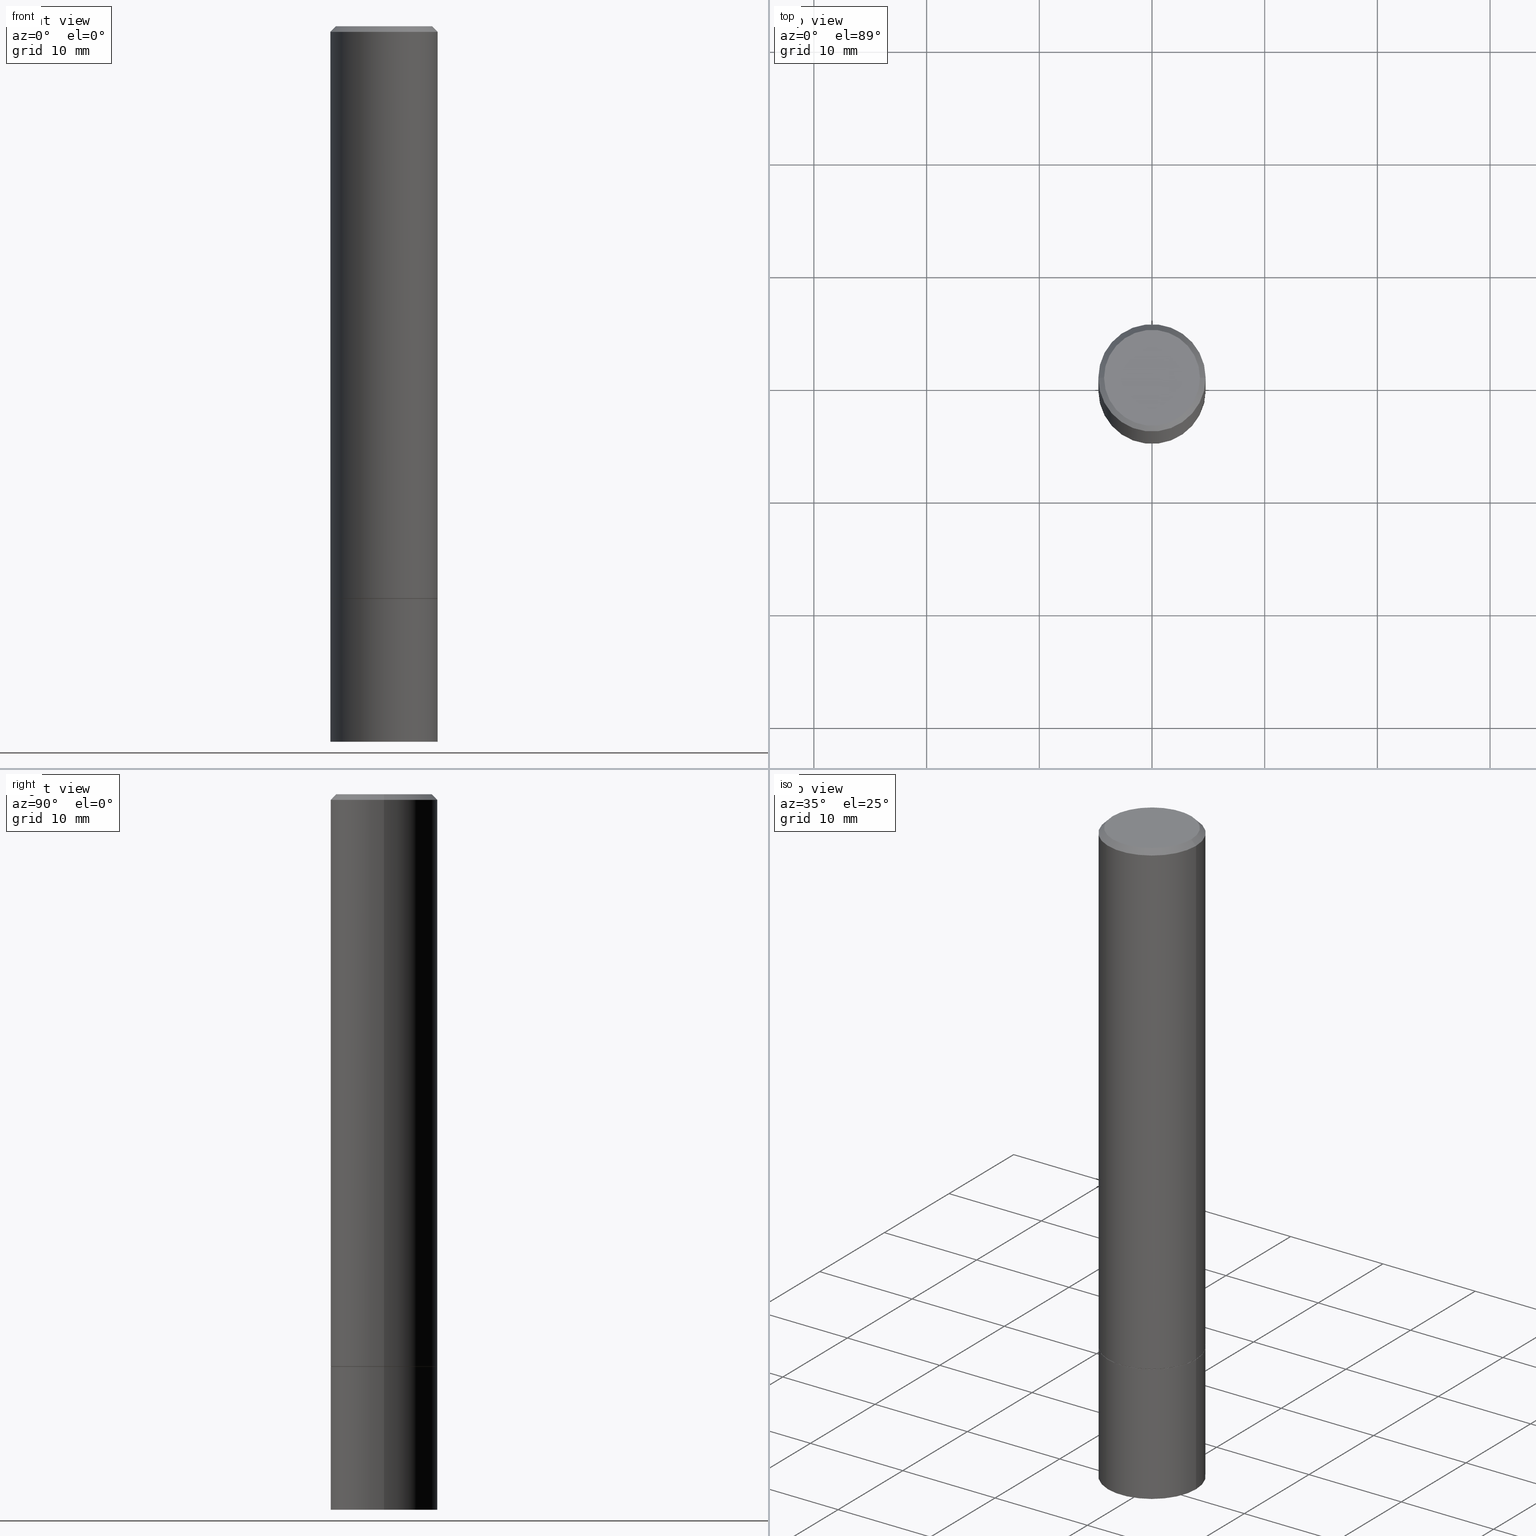
[diagram: canonical four-view strip — front | top / right | iso, engineering-drawing reading convention]
A machine part, canonical four-view strip (front | top / right | iso — engineering-drawing reading convention). The complete STEP part file that produces these views, byte-faithful:
ISO-10303-21;
HEADER;
FILE_DESCRIPTION (( 'STEP AP203' ),
    '1' );
FILE_NAME ('32661.STEP',
    '2022-04-27T15:46:38',
    ( '' ),
    ( '' ),
    'SwSTEP 2.0',
    'SolidWorks 2022',
    '' );
FILE_SCHEMA (( 'CONFIG_CONTROL_DESIGN' ));
ENDSEC;

DATA;
#1 = CARTESIAN_POINT ( 'NONE',  ( -0.1674999999999997879, 1.204561061900879272E-15, -8.301862719484101980E-30 ) ) ;
#2 = VECTOR ( 'NONE', #211, 39.37007874015748854 ) ;
#3 = CARTESIAN_POINT ( 'NONE',  ( 0.000000000000000000, 0.000000000000000000, 0.000000000000000000 ) ) ;
#4 = ADVANCED_FACE ( 'NONE', ( #110 ), #223, .T. ) ;
#5 = DIRECTION ( 'NONE',  ( 1.000000000000000000, -6.982962677686266711E-15, 0.000000000000000000 ) ) ;
#6 = DIRECTION ( 'NONE',  ( 0.9998476951563912696, -6.920387862090559512E-15, -0.01745240643727649296 ) ) ;
#7 = CARTESIAN_POINT ( 'NONE',  ( 0.000000000000000000, 0.000000000000000000, 0.000000000000000000 ) ) ;
#8 = VECTOR ( 'NONE', #149, 39.37007874015748143 ) ;
#9 = ADVANCED_FACE ( 'NONE', ( #309 ), #48, .T. ) ;
#10 = CC_DESIGN_APPROVAL ( #209, ( #274 ) ) ;
#11 = DIRECTION ( 'NONE',  ( -2.438088387897960049E-29, 3.491481338843145188E-15, 1.000000000000000000 ) ) ;
#12 = FACE_OUTER_BOUND ( 'NONE', #196, .T. ) ;
#13 = ORIENTED_EDGE ( 'NONE', *, *, #160, .T. ) ;
#14 = PERSON_AND_ORGANIZATION ( #333, #151 ) ;
#15 = DIMENSIONAL_EXPONENTS ( 1.000000000000000000, 0.000000000000000000, 0.000000000000000000, 0.000000000000000000, 0.000000000000000000, 0.000000000000000000, 0.000000000000000000 ) ;
#16 = EDGE_LOOP ( 'NONE', ( #107, #13, #85, #78 ) ) ;
#17 = ORIENTED_EDGE ( 'NONE', *, *, #172, .F. ) ;
#18 = DIRECTION ( 'NONE',  ( 1.000000000000000000, 0.000000000000000000, 0.000000000000000000 ) ) ;
#19 = ADVANCED_FACE ( 'NONE', ( #234 ), #358, .T. ) ;
#20 = APPLICATION_CONTEXT ( 'configuration controlled 3d designs of mechanical parts and assemblies' ) ;
#21 = VERTEX_POINT ( 'NONE', #1 ) ;
#22 = CC_DESIGN_PERSON_AND_ORGANIZATION_ASSIGNMENT ( #346, #177, ( #213 ) ) ;
#23 = DATE_AND_TIME ( #80, #240 ) ;
#24 = CARTESIAN_POINT ( 'NONE',  ( 1.023839678809221063E-27, -1.461771715708782654E-13, -41.86680591548343955 ) ) ;
#25 = CALENDAR_DATE ( 2022, 27, 4 ) ;
#26 = DIRECTION ( 'NONE',  ( -0.7071067811865466846, 2.468850131082247989E-15, -0.7071067811865483499 ) ) ;
#27 = DIRECTION ( 'NONE',  ( 1.000000000000000000, -6.982962677686265922E-15, 4.876176775795935793E-29 ) ) ;
#28 = EDGE_CURVE ( 'NONE', #377, #21, #312, .T. ) ;
#29 = DIRECTION ( 'NONE',  ( 0.7071067811865466846, -7.319954787623252890E-15, -0.7071067811865483499 ) ) ;
#30 = AXIS2_PLACEMENT_3D ( 'NONE', #345, #281, #18 ) ;
#31 = APPROVAL_PERSON_ORGANIZATION ( #56, #359, #50 ) ;
#32 = CARTESIAN_POINT ( 'NONE',  ( -0.1864999999999999714, -5.657800475493705114E-15, -2.000000000000000000 ) ) ;
#33 = EDGE_CURVE ( 'NONE', #284, #316, #247, .T. ) ;
#34 = ADVANCED_BREP_SHAPE_REPRESENTATION ( '32661', ( #108, #365, #30 ), #313 ) ;
#35 = CYLINDRICAL_SURFACE ( 'NONE', #351, 0.1874999999999999167 ) ;
#36 = AXIS2_PLACEMENT_3D ( 'NONE', #301, #273, #5 ) ;
#37 = FACE_OUTER_BOUND ( 'NONE', #165, .T. ) ;
#38 = CC_DESIGN_PERSON_AND_ORGANIZATION_ASSIGNMENT ( #14, #253, ( #132 ) ) ;
#39 = DIRECTION ( 'NONE',  ( -2.445468806185136597E-29, 3.491481338843145583E-15, 1.000000000000000000 ) ) ;
#40 = EDGE_CURVE ( 'NONE', #21, #102, #95, .T. ) ;
#41 = DIRECTION ( 'NONE',  ( -2.445468806185136597E-29, 3.491481338843145583E-15, 1.000000000000000000 ) ) ;
#42 = CARTESIAN_POINT ( 'NONE',  ( 0.1875000000000000555, -8.288776698413622377E-15, -1.998999999999999888 ) ) ;
#43 = CONICAL_SURFACE ( 'NONE', #176, 0.1874999999999997780, 0.7853981633974471688 ) ;
#44 = CC_DESIGN_APPROVAL ( #94, ( #213 ) ) ;
#45 = ORIENTED_EDGE ( 'NONE', *, *, #348, .F. ) ;
#46 = APPROVAL_STATUS ( 'not_yet_approved' ) ;
#47 = APPLICATION_CONTEXT ( 'configuration controlled 3d designs of mechanical parts and assemblies' ) ;
#48 = CYLINDRICAL_SURFACE ( 'NONE', #103, 0.1874999999999999167 ) ;
#49 = PERSON_AND_ORGANIZATION ( #333, #151 ) ;
#50 = APPROVAL_ROLE ( '' ) ;
#51 = ORIENTED_EDGE ( 'NONE', *, *, #188, .F. ) ;
#52 = CIRCLE ( 'NONE', #267, 0.1875000000000000278 ) ;
#53 = LOCAL_TIME ( 11, 46, 38.00000000000000000, #197 ) ;
#54 = DATE_AND_TIME ( #25, #120 ) ;
#55 = EDGE_LOOP ( 'NONE', ( #201, #339, #17, #228 ) ) ;
#56 = PERSON_AND_ORGANIZATION ( #333, #151 ) ;
#57 = ORIENTED_EDGE ( 'NONE', *, *, #361, .T. ) ;
#58 = CYLINDRICAL_SURFACE ( 'NONE', #388, 0.1875000000000000278 ) ;
#59 = CARTESIAN_POINT ( 'NONE',  ( -0.1874999999999997780, 1.239475875289310330E-15, -0.02000000000000004205 ) ) ;
#60 = PERSON_AND_ORGANIZATION ( #333, #151 ) ;
#61 = ADVANCED_FACE ( 'NONE', ( #269 ), #43, .T. ) ;
#62 = PLANE ( 'NONE',  #106 ) ;
#63 = CARTESIAN_POINT ( 'NONE',  ( 0.1864999999999999714, -8.285285217074779370E-15, -2.000000000000000000 ) ) ;
#64 = DIRECTION ( 'NONE',  ( -2.445468806185136597E-29, 3.491481338843145583E-15, 1.000000000000000000 ) ) ;
#65 = VECTOR ( 'NONE', #6, 39.37007874015748143 ) ;
#66 = APPROVAL_PERSON_ORGANIZATION ( #204, #94, #378 ) ;
#67 = DIRECTION ( 'NONE',  ( -1.000000000000000000, 6.982962677686265922E-15, -4.876176775795935793E-29 ) ) ;
#68 = ORIENTED_EDGE ( 'NONE', *, *, #259, .F. ) ;
#69 = DIRECTION ( 'NONE',  ( 1.000000000000000000, -6.982962677686266711E-15, 0.000000000000000000 ) ) ;
#70 = CARTESIAN_POINT ( 'NONE',  ( 1.169646248512448215E-15, 0.1674999999999997879, -5.848231242562260795E-16 ) ) ;
#71 = AXIS2_PLACEMENT_3D ( 'NONE', #335, #187, #298 ) ;
#72 = CARTESIAN_POINT ( 'NONE',  ( 0.1875000000000000278, -1.309305502066175008E-15, 9.142831454617381013E-30 ) ) ;
#73 = ORIENTED_EDGE ( 'NONE', *, *, #315, .T. ) ;
#74 = EDGE_CURVE ( 'NONE', #98, #199, #127, .T. ) ;
#75 = DIRECTION ( 'NONE',  ( -2.445468806185136597E-29, 3.491481338843145583E-15, 1.000000000000000000 ) ) ;
#76 = AXIS2_PLACEMENT_3D ( 'NONE', #144, #232, #88 ) ;
#77 = ORIENTED_EDGE ( 'NONE', *, *, #328, .T. ) ;
#78 = ORIENTED_EDGE ( 'NONE', *, *, #40, .F. ) ;
#79 = DIRECTION ( 'NONE',  ( -2.445468806185136597E-29, 3.491481338843145583E-15, 1.000000000000000000 ) ) ;
#80 = CALENDAR_DATE ( 2022, 27, 4 ) ;
#81 = ORIENTED_EDGE ( 'NONE', *, *, #84, .T. ) ;
#82 = VECTOR ( 'NONE', #389, 39.37007874015748143 ) ;
#83 = PERSON_AND_ORGANIZATION_ROLE ( 'creator' ) ;
#84 = EDGE_CURVE ( 'NONE', #288, #102, #91, .T. ) ;
#85 = ORIENTED_EDGE ( 'NONE', *, *, #188, .T. ) ;
#86 = DIRECTION ( 'NONE',  ( 2.438088387897960049E-29, -3.491481338843145188E-15, -1.000000000000000000 ) ) ;
#87 = PERSON_AND_ORGANIZATION ( #333, #151 ) ;
#88 = DIRECTION ( 'NONE',  ( -1.000000000000000000, 6.982962677686265133E-15, 0.000000000000000000 ) ) ;
#89 = CIRCLE ( 'NONE', #136, 0.1874999999999997780 ) ;
#90 = EDGE_CURVE ( 'NONE', #225, #288, #147, .T. ) ;
#91 = LINE ( 'NONE', #320, #162 ) ;
#92 = DIRECTION ( 'NONE',  ( -1.000000000000000000, 6.982962677686268288E-15, 0.000000000000000000 ) ) ;
#93 = ADVANCED_FACE ( 'NONE', ( #330 ), #62, .F. ) ;
#94 = APPROVAL ( #321, 'UNSPECIFIED' ) ;
#95 = LINE ( 'NONE', #203, #224 ) ;
#96 = ORIENTED_EDGE ( 'NONE', *, *, #362, .F. ) ;
#97 = AXIS2_PLACEMENT_3D ( 'NONE', #163, #214, #104 ) ;
#98 = VERTEX_POINT ( 'NONE', #63 ) ;
#99 = CARTESIAN_POINT ( 'NONE',  ( 0.1874999999999997780, -1.356173001359023691E-15, -0.02000000000000004205 ) ) ;
#100 = ADVANCED_FACE ( 'NONE', ( #185 ), #271, .F. ) ;
#101 = CARTESIAN_POINT ( 'NONE',  ( 0.1875000000000000278, -8.292268179752466962E-15, -2.000000000000000000 ) ) ;
#102 = VERTEX_POINT ( 'NONE', #59 ) ;
#103 = AXIS2_PLACEMENT_3D ( 'NONE', #166, #180, #294 ) ;
#104 = DIRECTION ( 'NONE',  ( 1.000000000000000000, -6.982962677686265922E-15, 0.000000000000000000 ) ) ;
#105 = CARTESIAN_POINT ( 'NONE',  ( 1.023839678809221063E-27, -1.461771715708782654E-13, -41.86680591548343955 ) ) ;
#106 = AXIS2_PLACEMENT_3D ( 'NONE', #360, #86, #67 ) ;
#107 = ORIENTED_EDGE ( 'NONE', *, *, #28, .F. ) ;
#108 = MANIFOLD_SOLID_BREP ( 'Body-Move/Copy2[1]', #386 ) ;
#109 = CALENDAR_DATE ( 2022, 27, 4 ) ;
#110 = FACE_OUTER_BOUND ( 'NONE', #55, .T. ) ;
#111 = CARTESIAN_POINT ( 'NONE',  ( 0.000000000000000000, 0.000000000000000000, 0.000000000000000000 ) ) ;
#112 = CC_DESIGN_DATE_AND_TIME_ASSIGNMENT ( #382, #167, ( #274 ) ) ;
#113 = DATE_AND_TIME ( #195, #248 ) ;
#114 = DESIGN_CONTEXT ( 'detailed design', #20, 'design' ) ;
#115 = EDGE_LOOP ( 'NONE', ( #367, #257 ) ) ;
#116 = CC_DESIGN_PERSON_AND_ORGANIZATION_ASSIGNMENT ( #49, #318, ( #352 ) ) ;
#117 = ORIENTED_EDGE ( 'NONE', *, *, #148, .F. ) ;
#118 = MECHANICAL_CONTEXT ( 'NONE', #47, 'mechanical' ) ;
#119 = CIRCLE ( 'NONE', #198, 0.1875000000000000555 ) ;
#120 = LOCAL_TIME ( 11, 46, 38.00000000000000000, #256 ) ;
#121 = APPROVAL_STATUS ( 'not_yet_approved' ) ;
#122 = DIRECTION ( 'NONE',  ( -2.445468806185136877E-29, 3.491481338843145188E-15, 1.000000000000000000 ) ) ;
#123 = CARTESIAN_POINT ( 'NONE',  ( 0.1875000000000009992, -1.001504672169003342E-14, -2.500000000000000000 ) ) ;
#124 = CARTESIAN_POINT ( 'NONE',  ( 0.1874999999999997780, -1.356173001359023691E-15, -0.02000000000000004205 ) ) ;
#125 = AXIS2_PLACEMENT_3D ( 'NONE', #219, #41, #186 ) ;
#126 = CARTESIAN_POINT ( 'NONE',  ( 0.000000000000000000, 0.000000000000000000, 0.000000000000000000 ) ) ;
#127 = LINE ( 'NONE', #296, #291 ) ;
#128 = EDGE_CURVE ( 'NONE', #317, #156, #175, .T. ) ;
#129 = DIRECTION ( 'NONE',  ( -2.445468806185136597E-29, 3.491481338843145583E-15, 1.000000000000000000 ) ) ;
#130 = CARTESIAN_POINT ( 'NONE',  ( 4.890937612370283668E-31, -6.982962677686305168E-17, -0.02000000000000004205 ) ) ;
#131 = VERTEX_POINT ( 'NONE', #123 ) ;
#132 = SECURITY_CLASSIFICATION ( '', '', #260 ) ;
#133 = UNCERTAINTY_MEASURE_WITH_UNIT (LENGTH_MEASURE( 1.000000000000000082E-05 ), #380, 'distance_accuracy_value', 'NONE');
#134 = EDGE_LOOP ( 'NONE', ( #57, #217, #295, #68 ) ) ;
#135 = DIRECTION ( 'NONE',  ( 1.000000000000000000, -6.982962677686265922E-15, 4.876176775795935793E-29 ) ) ;
#136 = AXIS2_PLACEMENT_3D ( 'NONE', #130, #242, #220 ) ;
#137 = ORIENTED_EDGE ( 'NONE', *, *, #285, .F. ) ;
#138 = CARTESIAN_POINT ( 'NONE',  ( 0.1674999999999997879, -1.252653207992876908E-15, 8.469775550109228175E-30 ) ) ;
#139 = ADVANCED_FACE ( 'NONE', ( #233 ), #261, .T. ) ;
#140 = EDGE_LOOP ( 'NONE', ( #374, #173, #192, #379 ) ) ;
#141 = APPROVAL_DATE_TIME ( #23, #209 ) ;
#142 = ORIENTED_EDGE ( 'NONE', *, *, #361, .F. ) ;
#143 = PERSON_AND_ORGANIZATION_ROLE ( 'creator' ) ;
#144 = CARTESIAN_POINT ( 'NONE',  ( 4.890937612370283668E-31, -6.982962677686305168E-17, -0.02000000000000004205 ) ) ;
#145 = PRODUCT_DEFINITION_SHAPE ( 'NONE', 'NONE',  #274 ) ;
#146 = SHAPE_DEFINITION_REPRESENTATION ( #145, #34 ) ;
#147 = LINE ( 'NONE', #32, #2 ) ;
#148 = EDGE_CURVE ( 'NONE', #98, #225, #276, .T. ) ;
#149 = DIRECTION ( 'NONE',  ( -0.9998476951563912696, 6.920964387254060733E-15, -0.01745240643727649296 ) ) ;
#150 = LINE ( 'NONE', #268, #82 ) ;
#151 = ORGANIZATION ( 'UNSPECIFIED', 'UNSPECIFIED', '' ) ;
#152 = DIRECTION ( 'NONE',  ( 1.000000000000000000, -6.982962677686266711E-15, 0.000000000000000000 ) ) ;
#153 = EDGE_CURVE ( 'NONE', #199, #299, #205, .T. ) ;
#154 = ORIENTED_EDGE ( 'NONE', *, *, #40, .T. ) ;
#155 = FACE_OUTER_BOUND ( 'NONE', #310, .T. ) ;
#156 = VERTEX_POINT ( 'NONE', #265 ) ;
#157 = VECTOR ( 'NONE', #272, 39.37007874015748143 ) ;
#158 = LINE ( 'NONE', #72, #157 ) ;
#159 = DIRECTION ( 'NONE',  ( 1.000000000000000000, -6.982962677686265922E-15, 0.000000000000000000 ) ) ;
#160 = EDGE_CURVE ( 'NONE', #377, #299, #385, .T. ) ;
#161 = CC_DESIGN_DATE_AND_TIME_ASSIGNMENT ( #113, #200, ( #132 ) ) ;
#162 = VECTOR ( 'NONE', #122, 39.37007874015748143 ) ;
#163 = CARTESIAN_POINT ( 'NONE',  ( 4.888492143564087591E-29, -6.979471196347447369E-15, -1.998999999999999888 ) ) ;
#164 = DIRECTION ( 'NONE',  ( 1.000000000000000000, -6.982962677686265922E-15, 4.876176775795935793E-29 ) ) ;
#165 = EDGE_LOOP ( 'NONE', ( #334, #364, #286, #349 ) ) ;
#166 = CARTESIAN_POINT ( 'NONE',  ( 0.000000000000000000, 0.000000000000000000, 0.000000000000000000 ) ) ;
#167 = DATE_TIME_ROLE ( 'creation_date' ) ;
#168 = EDGE_CURVE ( 'NONE', #156, #284, #150, .T. ) ;
#169 = CLOSED_SHELL ( 'NONE', ( #4, #9, #61, #139, #245, #238, #182, #221 ) ) ;
#170 = ORIENTED_EDGE ( 'NONE', *, *, #153, .F. ) ;
#171 = EDGE_LOOP ( 'NONE', ( #239, #255, #258, #280 ) ) ;
#172 = EDGE_CURVE ( 'NONE', #199, #288, #119, .T. ) ;
#173 = ORIENTED_EDGE ( 'NONE', *, *, #348, .T. ) ;
#174 = APPROVAL_ROLE ( '' ) ;
#175 = LINE ( 'NONE', #264, #8 ) ;
#176 = AXIS2_PLACEMENT_3D ( 'NONE', #183, #292, #325 ) ;
#177 = PERSON_AND_ORGANIZATION_ROLE ( 'design_supplier' ) ;
#178 = DIRECTION ( 'NONE',  ( 1.000000000000000000, -6.982962677686266711E-15, 4.876176775795935793E-29 ) ) ;
#179 = CC_DESIGN_PERSON_AND_ORGANIZATION_ASSIGNMENT ( #87, #143, ( #274 ) ) ;
#180 = DIRECTION ( 'NONE',  ( -2.445468806185136597E-29, 3.491481338843145583E-15, 1.000000000000000000 ) ) ;
#181 = ORIENTED_EDGE ( 'NONE', *, *, #160, .F. ) ;
#182 = ADVANCED_FACE ( 'NONE', ( #189 ), #341, .F. ) ;
#183 = CARTESIAN_POINT ( 'NONE',  ( 4.890937612370283668E-31, -6.982962677686305168E-17, -0.02000000000000004205 ) ) ;
#184 = AXIS2_PLACEMENT_3D ( 'NONE', #305, #11, #164 ) ;
#185 = FACE_OUTER_BOUND ( 'NONE', #376, .T. ) ;
#186 = DIRECTION ( 'NONE',  ( 1.000000000000000000, -6.982962677686269077E-15, 0.000000000000000000 ) ) ;
#187 = DIRECTION ( 'NONE',  ( -2.445468806185136597E-29, 3.491481338843145583E-15, 1.000000000000000000 ) ) ;
#188 = EDGE_CURVE ( 'NONE', #299, #102, #343, .T. ) ;
#189 = FACE_OUTER_BOUND ( 'NONE', #252, .T. ) ;
#190 = AXIS2_PLACEMENT_3D ( 'NONE', #24, #293, #92 ) ;
#191 = DIRECTION ( 'NONE',  ( 1.000000000000000000, -6.982962677686265133E-15, 0.000000000000000000 ) ) ;
#192 = ORIENTED_EDGE ( 'NONE', *, *, #259, .T. ) ;
#193 = APPROVAL_PERSON_ORGANIZATION ( #250, #209, #174 ) ;
#194 = DIRECTION ( 'NONE',  ( 1.000000000000000000, -6.982962677686269077E-15, 0.000000000000000000 ) ) ;
#195 = CALENDAR_DATE ( 2022, 27, 4 ) ;
#196 = EDGE_LOOP ( 'NONE', ( #353, #279 ) ) ;
#197 = COORDINATED_UNIVERSAL_TIME_OFFSET ( 5, 0, .BEHIND. ) ;
#198 = AXIS2_PLACEMENT_3D ( 'NONE', #236, #327, #159 ) ;
#199 = VERTEX_POINT ( 'NONE', #42 ) ;
#200 = DATE_TIME_ROLE ( 'classification_date' ) ;
#201 = ORIENTED_EDGE ( 'NONE', *, *, #148, .T. ) ;
#202 = DATE_AND_TIME ( #109, #297 ) ;
#203 = CARTESIAN_POINT ( 'NONE',  ( -0.1874999999999997780, 1.239475875289310330E-15, -0.02000000000000004205 ) ) ;
#204 = PERSON_AND_ORGANIZATION ( #333, #151 ) ;
#205 = LINE ( 'NONE', #324, #375 ) ;
#206 = CIRCLE ( 'NONE', #369, 0.1674999999999997879 ) ;
#207 = ADVANCED_FACE ( 'NONE', ( #155 ), #254, .F. ) ;
#208 = CARTESIAN_POINT ( 'NONE',  ( 0.000000000000000000, 0.000000000000000000, 0.000000000000000000 ) ) ;
#209 = APPROVAL ( #46, 'UNSPECIFIED' ) ;
#210 = DIRECTION ( 'NONE',  ( -2.445468806185136877E-29, 3.491481338843145188E-15, 1.000000000000000000 ) ) ;
#211 = DIRECTION ( 'NONE',  ( -0.7071067811865474617, 7.493145998870352582E-15, 0.7071067811865474617 ) ) ;
#212 = AXIS2_PLACEMENT_3D ( 'NONE', #105, #278, #215 ) ;
#213 = PRODUCT_DEFINITION_FORMATION_WITH_SPECIFIED_SOURCE ( 'ANY', '', #352, .NOT_KNOWN. ) ;
#214 = DIRECTION ( 'NONE',  ( -2.445468806185136597E-29, 3.491481338843145583E-15, 1.000000000000000000 ) ) ;
#215 = DIRECTION ( 'NONE',  ( -1.000000000000000000, 6.982962677686268288E-15, 0.000000000000000000 ) ) ;
#216 = CARTESIAN_POINT ( 'NONE',  ( 6.105668424814365750E-29, -8.717276340833150111E-15, -2.496727175325960779 ) ) ;
#217 = ORIENTED_EDGE ( 'NONE', *, *, #168, .T. ) ;
#218 = AXIS2_PLACEMENT_3D ( 'NONE', #262, #356, #355 ) ;
#219 = CARTESIAN_POINT ( 'NONE',  ( 4.890937612370273194E-29, -6.982962677686291165E-15, -2.000000000000000000 ) ) ;
#220 = DIRECTION ( 'NONE',  ( 1.000000000000000000, -6.982962677686265133E-15, 0.000000000000000000 ) ) ;
#221 = ADVANCED_FACE ( 'NONE', ( #12 ), #275, .F. ) ;
#222 = APPLICATION_PROTOCOL_DEFINITION ( 'international standard', 'config_control_design', 1994, #47 ) ;
#223 = CONICAL_SURFACE ( 'NONE', #266, 0.1864999999999999714, 0.7853981633974482790 ) ;
#224 = VECTOR ( 'NONE', #26, 39.37007874015748143 ) ;
#225 = VERTEX_POINT ( 'NONE', #373 ) ;
#226 = CARTESIAN_POINT ( 'NONE',  ( 4.890937612370273194E-29, -6.982962677686291165E-15, -2.000000000000000000 ) ) ;
#227 = FACE_OUTER_BOUND ( 'NONE', #140, .T. ) ;
#228 = ORIENTED_EDGE ( 'NONE', *, *, #74, .F. ) ;
#229 = CIRCLE ( 'NONE', #36, 0.1875000000000000278 ) ;
#230 = ORIENTED_EDGE ( 'NONE', *, *, #128, .T. ) ;
#231 = APPROVAL_DATE_TIME ( #54, #359 ) ;
#232 = DIRECTION ( 'NONE',  ( 2.445468806185136597E-29, -3.491481338843145583E-15, -1.000000000000000000 ) ) ;
#233 = FACE_OUTER_BOUND ( 'NONE', #347, .T. ) ;
#234 = FACE_OUTER_BOUND ( 'NONE', #134, .T. ) ;
#235 = CONICAL_SURFACE ( 'NONE', #71, 0.1864999999999999714, 0.7853981633974482790 ) ;
#236 = CARTESIAN_POINT ( 'NONE',  ( 4.888492143564087591E-29, -6.979471196347447369E-15, -1.998999999999999888 ) ) ;
#237 = DIRECTION ( 'NONE',  ( 0.7071067811865474617, -2.468850131082256666E-15, 0.7071067811865474617 ) ) ;
#238 = ADVANCED_FACE ( 'NONE', ( #303 ), #235, .T. ) ;
#239 = ORIENTED_EDGE ( 'NONE', *, *, #90, .F. ) ;
#240 = LOCAL_TIME ( 11, 46, 38.00000000000000000, #354 ) ;
#241 = DIRECTION ( 'NONE',  ( 1.000000000000000000, -6.982962677686266711E-15, 4.876176775795935793E-29 ) ) ;
#242 = DIRECTION ( 'NONE',  ( -2.445468806185136597E-29, 3.491481338843145583E-15, 1.000000000000000000 ) ) ;
#243 = EDGE_LOOP ( 'NONE', ( #304, #81, #51, #170 ) ) ;
#244 = DIRECTION ( 'NONE',  ( -2.445468806185136597E-29, 3.491481338843145583E-15, 1.000000000000000000 ) ) ;
#245 = ADVANCED_FACE ( 'NONE', ( #37 ), #35, .T. ) ;
#246 = DIRECTION ( 'NONE',  ( 1.000000000000000000, -6.982962677686265922E-15, 4.876176775795935793E-29 ) ) ;
#247 = CIRCLE ( 'NONE', #300, 0.1875000000000000278 ) ;
#248 = LOCAL_TIME ( 11, 46, 38.00000000000000000, #319 ) ;
#249 = DIRECTION ( 'NONE',  ( 1.000000000000000000, -6.982962677686266711E-15, 0.000000000000000000 ) ) ;
#250 = PERSON_AND_ORGANIZATION ( #333, #151 ) ;
#251 = DIRECTION ( 'NONE',  ( -1.000000000000000000, 6.982962677686265922E-15, -4.876176775795935793E-29 ) ) ;
#252 = EDGE_LOOP ( 'NONE', ( #117, #96 ) ) ;
#253 = PERSON_AND_ORGANIZATION_ROLE ( 'classification_officer' ) ;
#254 = CONICAL_SURFACE ( 'NONE', #212, 2255.510300424507022, 1.553343034274960344 ) ;
#255 = ORIENTED_EDGE ( 'NONE', *, *, #362, .T. ) ;
#256 = COORDINATED_UNIVERSAL_TIME_OFFSET ( 5, 0, .BEHIND. ) ;
#257 = ORIENTED_EDGE ( 'NONE', *, *, #33, .T. ) ;
#258 = ORIENTED_EDGE ( 'NONE', *, *, #74, .T. ) ;
#259 = EDGE_CURVE ( 'NONE', #131, #316, #158, .T. ) ;
#260 = SECURITY_CLASSIFICATION_LEVEL ( 'unclassified' ) ;
#261 = CONICAL_SURFACE ( 'NONE', #76, 0.1874999999999997780, 0.7853981633974471688 ) ;
#262 = CARTESIAN_POINT ( 'NONE',  ( 4.890937612370273194E-29, -6.982962677686291165E-15, -2.000000000000000000 ) ) ;
#263 = APPROVAL_DATE_TIME ( #202, #94 ) ;
#264 = CARTESIAN_POINT ( 'NONE',  ( 6.105668424814365750E-29, -8.717276340833150111E-15, -2.496727175325960779 ) ) ;
#265 = CARTESIAN_POINT ( 'NONE',  ( -0.1875000000000009992, -7.419397845041682046E-15, -2.500000000000000000 ) ) ;
#266 = AXIS2_PLACEMENT_3D ( 'NONE', #226, #344, #194 ) ;
#267 = AXIS2_PLACEMENT_3D ( 'NONE', #277, #244, #249 ) ;
#268 = CARTESIAN_POINT ( 'NONE',  ( -0.1875000000000000278, 1.332267629550188046E-15, -9.223003294227947991E-30 ) ) ;
#269 = FACE_OUTER_BOUND ( 'NONE', #16, .T. ) ;
#270 = ORIENTED_EDGE ( 'NONE', *, *, #328, .F. ) ;
#271 = CONICAL_SURFACE ( 'NONE', #190, 2255.510300424507022, 1.553343034274960344 ) ;
#272 = DIRECTION ( 'NONE',  ( -2.445468806185136877E-29, 3.491481338843145188E-15, 1.000000000000000000 ) ) ;
#273 = DIRECTION ( 'NONE',  ( -2.445468806185136597E-29, 3.491481338843145583E-15, 1.000000000000000000 ) ) ;
#274 = PRODUCT_DEFINITION ( 'UNKNOWN', '', #213, #114 ) ;
#275 = PLANE ( 'NONE',  #322 ) ;
#276 = CIRCLE ( 'NONE', #218, 0.1864999999999999714 ) ;
#277 = CARTESIAN_POINT ( 'NONE',  ( 6.113672015462842613E-29, -8.728703347107864943E-15, -2.500000000000000000 ) ) ;
#278 = DIRECTION ( 'NONE',  ( 2.445468806185136597E-29, -3.491481338843145583E-15, -1.000000000000000000 ) ) ;
#279 = ORIENTED_EDGE ( 'NONE', *, *, #28, .T. ) ;
#280 = ORIENTED_EDGE ( 'NONE', *, *, #323, .F. ) ;
#281 = DIRECTION ( 'NONE',  ( 0.000000000000000000, 0.000000000000000000, 1.000000000000000000 ) ) ;
#282 = CIRCLE ( 'NONE', #329, 0.1875000000000000278 ) ;
#283 = PRODUCT_RELATED_PRODUCT_CATEGORY ( 'detail', '', ( #352 ) ) ;
#284 = VERTEX_POINT ( 'NONE', #371 ) ;
#285 = EDGE_CURVE ( 'NONE', #21, #377, #206, .T. ) ;
#286 = ORIENTED_EDGE ( 'NONE', *, *, #153, .T. ) ;
#287 =( NAMED_UNIT ( * ) SI_UNIT ( $, .STERADIAN. ) SOLID_ANGLE_UNIT ( ) );
#288 = VERTEX_POINT ( 'NONE', #366 ) ;
#289 = APPLICATION_PROTOCOL_DEFINITION ( 'international standard', 'config_control_design', 1994, #20 ) ;
#290 = CALENDAR_DATE ( 2022, 27, 4 ) ;
#291 = VECTOR ( 'NONE', #237, 39.37007874015748854 ) ;
#292 = DIRECTION ( 'NONE',  ( 2.445468806185136597E-29, -3.491481338843145583E-15, -1.000000000000000000 ) ) ;
#293 = DIRECTION ( 'NONE',  ( 2.445468806185136597E-29, -3.491481338843145583E-15, -1.000000000000000000 ) ) ;
#294 = DIRECTION ( 'NONE',  ( 1.000000000000000000, -6.982962677686265922E-15, 4.876176775795935793E-29 ) ) ;
#295 = ORIENTED_EDGE ( 'NONE', *, *, #306, .F. ) ;
#296 = CARTESIAN_POINT ( 'NONE',  ( 0.1864999999999999714, -8.285285217074779370E-15, -2.000000000000000000 ) ) ;
#297 = LOCAL_TIME ( 11, 46, 38.00000000000000000, #314 ) ;
#298 = DIRECTION ( 'NONE',  ( 1.000000000000000000, -6.982962677686269077E-15, 0.000000000000000000 ) ) ;
#299 = VERTEX_POINT ( 'NONE', #99 ) ;
#300 = AXIS2_PLACEMENT_3D ( 'NONE', #384, #64, #152 ) ;
#301 = CARTESIAN_POINT ( 'NONE',  ( 4.890937612370273194E-29, -6.982962677686291165E-15, -2.000000000000000000 ) ) ;
#302 = CARTESIAN_POINT ( 'NONE',  ( 6.105668424814365750E-29, -8.717276340833150111E-15, -2.496727175325960779 ) ) ;
#303 = FACE_OUTER_BOUND ( 'NONE', #171, .T. ) ;
#304 = ORIENTED_EDGE ( 'NONE', *, *, #172, .T. ) ;
#305 = CARTESIAN_POINT ( 'NONE',  ( 4.890937612370273194E-29, -6.982962677686291165E-15, -2.000000000000000000 ) ) ;
#306 = EDGE_CURVE ( 'NONE', #316, #284, #229, .T. ) ;
#307 = CIRCLE ( 'NONE', #125, 0.1864999999999999714 ) ;
#308 = LENGTH_MEASURE_WITH_UNIT ( LENGTH_MEASURE( 0.02539999999999999897 ), #311 );
#309 = FACE_OUTER_BOUND ( 'NONE', #243, .T. ) ;
#310 = EDGE_LOOP ( 'NONE', ( #270, #230, #142 ) ) ;
#311 =( LENGTH_UNIT ( ) NAMED_UNIT ( * ) SI_UNIT ( $, .METRE. ) );
#312 = CIRCLE ( 'NONE', #381, 0.1674999999999997879 ) ;
#313 =( GEOMETRIC_REPRESENTATION_CONTEXT ( 3 ) GLOBAL_UNCERTAINTY_ASSIGNED_CONTEXT ( ( #133 ) ) GLOBAL_UNIT_ASSIGNED_CONTEXT ( ( #380, #350, #287 ) ) REPRESENTATION_CONTEXT ( 'NONE', 'WORKASPACE' ) );
#314 = COORDINATED_UNIVERSAL_TIME_OFFSET ( 5, 0, .BEHIND. ) ;
#315 = EDGE_CURVE ( 'NONE', #102, #299, #89, .T. ) ;
#316 = VERTEX_POINT ( 'NONE', #101 ) ;
#317 = VERTEX_POINT ( 'NONE', #216 ) ;
#318 = PERSON_AND_ORGANIZATION_ROLE ( 'design_owner' ) ;
#319 = COORDINATED_UNIVERSAL_TIME_OFFSET ( 5, 0, .BEHIND. ) ;
#320 = CARTESIAN_POINT ( 'NONE',  ( -0.1874999999999999167, 1.332267629550187257E-15, -9.223003294227943787E-30 ) ) ;
#321 = APPROVAL_STATUS ( 'not_yet_approved' ) ;
#322 = AXIS2_PLACEMENT_3D ( 'NONE', #70, #338, #251 ) ;
#323 = EDGE_CURVE ( 'NONE', #288, #199, #357, .T. ) ;
#324 = CARTESIAN_POINT ( 'NONE',  ( 0.1874999999999999167, -1.309305502066174219E-15, 9.142831454617375408E-30 ) ) ;
#325 = DIRECTION ( 'NONE',  ( -1.000000000000000000, 6.982962677686265133E-15, 0.000000000000000000 ) ) ;
#326 = CC_DESIGN_PERSON_AND_ORGANIZATION_ASSIGNMENT ( #60, #83, ( #213 ) ) ;
#327 = DIRECTION ( 'NONE',  ( -2.445468806185136597E-29, 3.491481338843145583E-15, 1.000000000000000000 ) ) ;
#328 = EDGE_CURVE ( 'NONE', #317, #131, #336, .T. ) ;
#329 = AXIS2_PLACEMENT_3D ( 'NONE', #340, #39, #69 ) ;
#330 = FACE_OUTER_BOUND ( 'NONE', #115, .T. ) ;
#331 = CC_DESIGN_SECURITY_CLASSIFICATION ( #132, ( #213 ) ) ;
#332 = ORIENTED_EDGE ( 'NONE', *, *, #128, .F. ) ;
#333 = PERSON ( 'UNSPECIFIED', 'UNSPECIFIED', 'UNSPECIFIED', ('UNSPECIFIED'), ('UNSPECIFIED'), ('UNSPECIFIED') ) ;
#334 = ORIENTED_EDGE ( 'NONE', *, *, #84, .F. ) ;
#335 = CARTESIAN_POINT ( 'NONE',  ( 4.890937612370273194E-29, -6.982962677686291165E-15, -2.000000000000000000 ) ) ;
#336 = LINE ( 'NONE', #302, #65 ) ;
#337 = VECTOR ( 'NONE', #29, 39.37007874015748143 ) ;
#338 = DIRECTION ( 'NONE',  ( 2.438088387897960049E-29, -3.491481338843145188E-15, -1.000000000000000000 ) ) ;
#339 = ORIENTED_EDGE ( 'NONE', *, *, #90, .T. ) ;
#340 = CARTESIAN_POINT ( 'NONE',  ( 6.113672015462842613E-29, -8.728703347107864943E-15, -2.500000000000000000 ) ) ;
#341 = PLANE ( 'NONE',  #184 ) ;
#342 = CARTESIAN_POINT ( 'NONE',  ( 4.890937612370283668E-31, -6.982962677686305168E-17, -0.02000000000000004205 ) ) ;
#343 = CIRCLE ( 'NONE', #387, 0.1874999999999997780 ) ;
#344 = DIRECTION ( 'NONE',  ( -2.445468806185136597E-29, 3.491481338843145583E-15, 1.000000000000000000 ) ) ;
#345 = CARTESIAN_POINT ( 'NONE',  ( 0.000000000000000000, 0.000000000000000000, 0.000000000000000000 ) ) ;
#346 = PERSON_AND_ORGANIZATION ( #333, #151 ) ;
#347 = EDGE_LOOP ( 'NONE', ( #181, #137, #154, #73 ) ) ;
#348 = EDGE_CURVE ( 'NONE', #156, #131, #282, .T. ) ;
#349 = ORIENTED_EDGE ( 'NONE', *, *, #315, .F. ) ;
#350 =( NAMED_UNIT ( * ) PLANE_ANGLE_UNIT ( ) SI_UNIT ( $, .RADIAN. ) );
#351 = AXIS2_PLACEMENT_3D ( 'NONE', #7, #75, #246 ) ;
#352 = PRODUCT ( '32661', '32661', '', ( #118 ) ) ;
#353 = ORIENTED_EDGE ( 'NONE', *, *, #285, .T. ) ;
#354 = COORDINATED_UNIVERSAL_TIME_OFFSET ( 5, 0, .BEHIND. ) ;
#355 = DIRECTION ( 'NONE',  ( 1.000000000000000000, -6.982962677686269077E-15, 0.000000000000000000 ) ) ;
#356 = DIRECTION ( 'NONE',  ( -2.445468806185136597E-29, 3.491481338843145583E-15, 1.000000000000000000 ) ) ;
#357 = CIRCLE ( 'NONE', #97, 0.1875000000000000555 ) ;
#358 = CYLINDRICAL_SURFACE ( 'NONE', #368, 0.1875000000000000278 ) ;
#359 = APPROVAL ( #121, 'UNSPECIFIED' ) ;
#360 = CARTESIAN_POINT ( 'NONE',  ( 1.309305502066224115E-15, 0.1874999999999930611, -2.000000000000000444 ) ) ;
#361 = EDGE_CURVE ( 'NONE', #131, #156, #52, .T. ) ;
#362 = EDGE_CURVE ( 'NONE', #225, #98, #307, .T. ) ;
#363 = DIRECTION ( 'NONE',  ( -2.445468806185136597E-29, 3.491481338843145583E-15, 1.000000000000000000 ) ) ;
#364 = ORIENTED_EDGE ( 'NONE', *, *, #323, .T. ) ;
#365 = MANIFOLD_SOLID_BREP ( 'Body-Move/Copy2[2]', #169 ) ;
#366 = CARTESIAN_POINT ( 'NONE',  ( -0.1875000000000000555, -2.192382782011965907E-15, -1.998999999999999888 ) ) ;
#367 = ORIENTED_EDGE ( 'NONE', *, *, #306, .T. ) ;
#368 = AXIS2_PLACEMENT_3D ( 'NONE', #208, #363, #27 ) ;
#369 = AXIS2_PLACEMENT_3D ( 'NONE', #3, #129, #241 ) ;
#370 = CC_DESIGN_APPROVAL ( #359, ( #132 ) ) ;
#371 = CARTESIAN_POINT ( 'NONE',  ( -0.1875000000000000278, -6.523565382846889811E-15, -2.000000000000000000 ) ) ;
#372 = DIRECTION ( 'NONE',  ( -2.445468806185136597E-29, 3.491481338843145583E-15, 1.000000000000000000 ) ) ;
#373 = CARTESIAN_POINT ( 'NONE',  ( -0.1864999999999999714, -5.652502021145481923E-15, -2.000000000000000000 ) ) ;
#374 = ORIENTED_EDGE ( 'NONE', *, *, #168, .F. ) ;
#375 = VECTOR ( 'NONE', #210, 39.37007874015748143 ) ;
#376 = EDGE_LOOP ( 'NONE', ( #332, #77, #45 ) ) ;
#377 = VERTEX_POINT ( 'NONE', #138 ) ;
#378 = APPROVAL_ROLE ( '' ) ;
#379 = ORIENTED_EDGE ( 'NONE', *, *, #33, .F. ) ;
#380 =( CONVERSION_BASED_UNIT ( 'INCH', #308 ) LENGTH_UNIT ( ) NAMED_UNIT ( #15 ) );
#381 = AXIS2_PLACEMENT_3D ( 'NONE', #126, #383, #178 ) ;
#382 = DATE_AND_TIME ( #290, #53 ) ;
#383 = DIRECTION ( 'NONE',  ( -2.445468806185136597E-29, 3.491481338843145583E-15, 1.000000000000000000 ) ) ;
#384 = CARTESIAN_POINT ( 'NONE',  ( 4.890937612370273194E-29, -6.982962677686291165E-15, -2.000000000000000000 ) ) ;
#385 = LINE ( 'NONE', #124, #337 ) ;
#386 = CLOSED_SHELL ( 'NONE', ( #19, #100, #207, #390, #93 ) ) ;
#387 = AXIS2_PLACEMENT_3D ( 'NONE', #342, #372, #191 ) ;
#388 = AXIS2_PLACEMENT_3D ( 'NONE', #111, #79, #135 ) ;
#389 = DIRECTION ( 'NONE',  ( -2.445468806185136877E-29, 3.491481338843145188E-15, 1.000000000000000000 ) ) ;
#390 = ADVANCED_FACE ( 'NONE', ( #227 ), #58, .T. ) ;
ENDSEC;
END-ISO-10303-21;
